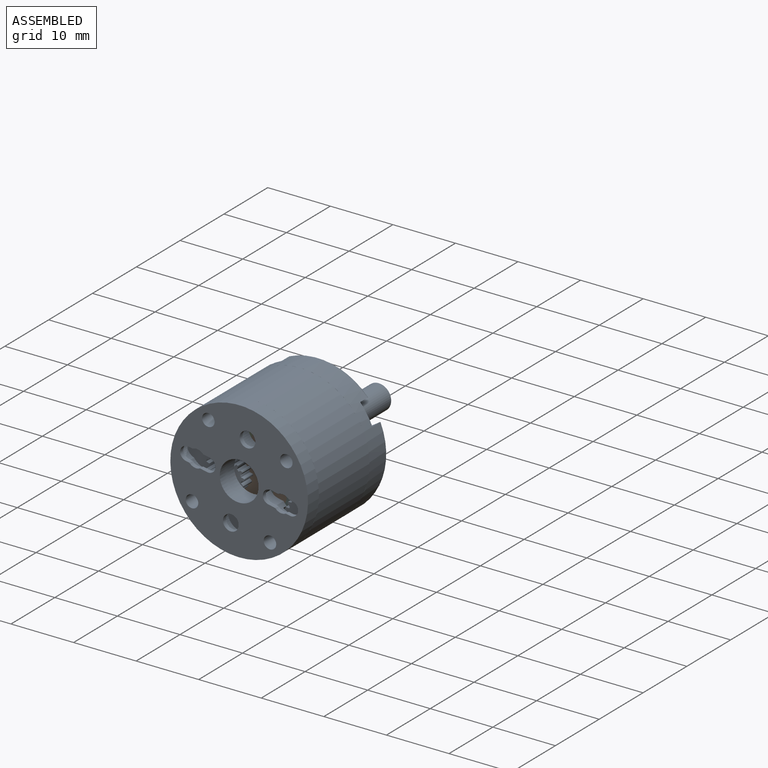
[diagram: assembled view]
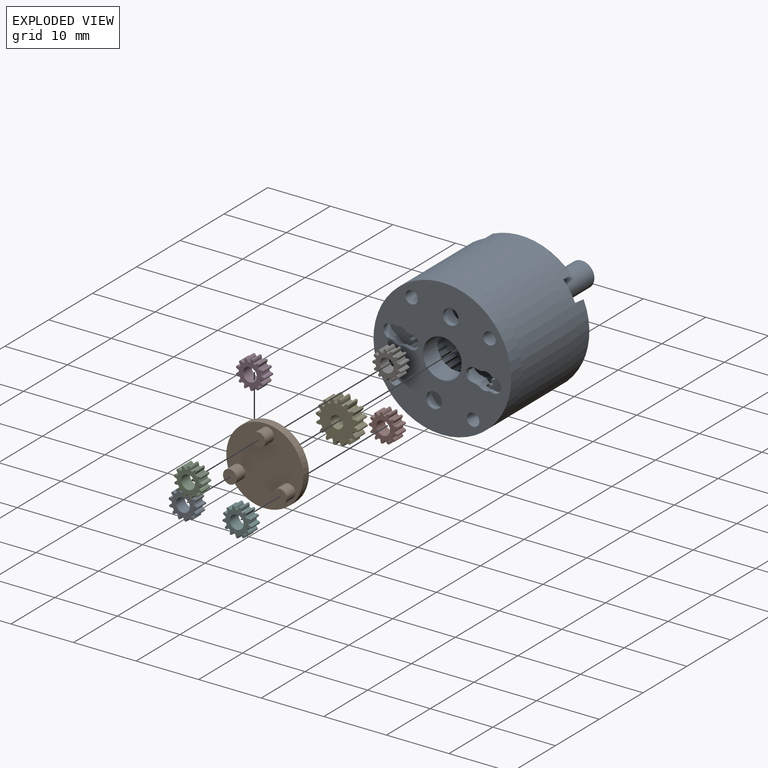
[diagram: exploded view]
GUIDED TOUR — MATED ASSEMBLY WITH SUBASSEMBLIES (Onshape document 57b5218062b9e988025ecf4e, AutoMate assembly 57b5218062b9e988025ecf4e_8886c2490278dff94fc5679e_6abe86f30e36404e3b47016e_default)

This assembly has 12 component occurrences arranged in 9 top-level units: 8 individual components plus 1 subassembly (S0). The tour has two levels: first the top level, where each subassembly is treated as one rigid unit; then each subassembly is toured internally in its own section (nesting deeper than one subassembly level is flattened into its subassembly's section).

Components are labeled P0..P11 across the whole record; subassembly units are labeled S0..S0. A mate is a constraint between two units; its type names the relative motion it leaves free:
  CYLINDRICAL — leaves both rotation about and translation along the listed axis free,
  FASTENED — locks the two components together rigidly (no relative motion),
  PLANAR — leaves sliding in the plane through the listed point (normal = the listed direction) and rotation about that normal free,
  REVOLUTE — leaves rotation about the listed axis free (a hinge).
Axis/direction vectors are unit vectors and 'through' points are millimeter coordinates, both in the assembly's world frame.

TOP-LEVEL MATES (between units; each subassembly's internal mates are listed in its own section)
  1. REVOLUTE "Revolute 1": P6 <-> S0, axis (0.000, 1.000, 0.000) through (-0.09, 2.40, -3.83) mm
  2. REVOLUTE "Revolute 3": P10 <-> S0, axis (0.000, 1.000, 0.000) through (6.83, 2.40, -4.16) mm
  3. CYLINDRICAL "Cylindrical 1": P2 <-> S0, axis (0.000, 1.000, 0.000) through (3.46, -0.65, -2.00) mm
  4. REVOLUTE "Revolute 6": P3 <-> P2, axis (0.000, 1.000, 0.000) through (3.86, -1.30, 2.60) mm
  5. REVOLUTE "Revolute 2": P9 <-> S0, axis (0.000, 1.000, 0.000) through (3.65, 2.40, 2.00) mm
  6. PLANAR "Planar 1": S0 <-> P2, direction (0.000, -1.000, 0.000) through (3.65, 0.40, 2.00) mm
  7. REVOLUTE "Revolute 5": P8 <-> P2, axis (0.000, 1.000, 0.000) through (7.25, -1.30, -4.64) mm
  8. FASTENED "Fastened 1": P7 <-> P2, direction (0.000, -1.000, 0.000) through (3.46, 0.00, -2.00) mm
  9. REVOLUTE "Revolute 7": P11 <-> P2, axis (0.000, 1.000, 0.000) through (-0.72, -1.30, -3.96) mm

TOP-LEVEL ASSEMBLY ORDER
  1. P2 — the base component [order heuristic]
  2. P7 [order verified]
  3. P3 — core [order heuristic]
  4. P8 — core [order heuristic]
  5. P11 — core [order heuristic]
  6. S0 — core [order heuristic]
  7. P10 [order verified]
  8. P9 [order verified]
  9. P6 [order verified]
(P10 verified with a relaxed clearance tolerance: the source model stores slight part interference there.)
Order-tag legend:
  [order verified] — this step's position reverses a verified removal order: the component was checked to insert without passing through the ones already placed.
  [order heuristic] — the first 5 components form the assembly's core: parts whose collision-free extraction could not be verified, listed in mate-graph order.

Of the 12 component occurrences, 3 carry the full construction recipe — the FeatureScript program that regenerates the part's solid from scratch; the rest are supplied as boundary geometry only. Each toured unit is shown spotlighted twice — assembled, then exploded with a leader line back to its socket (green = recipe-attached component, orange = geometry-only, blue = subassembly unit; the rest desaturated gray).
NOTE — this tour is split across 2 documents so each fits a 32k-token context. This is document 1: the component sections continue in the remaining 1 document, each repeating the header above.
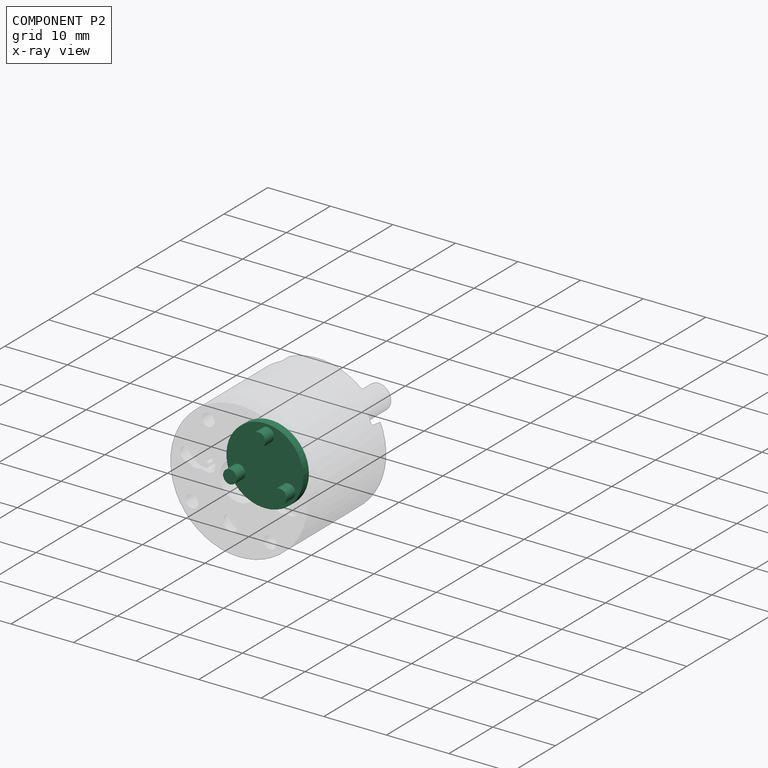
[diagram: component P2 — x-ray view]
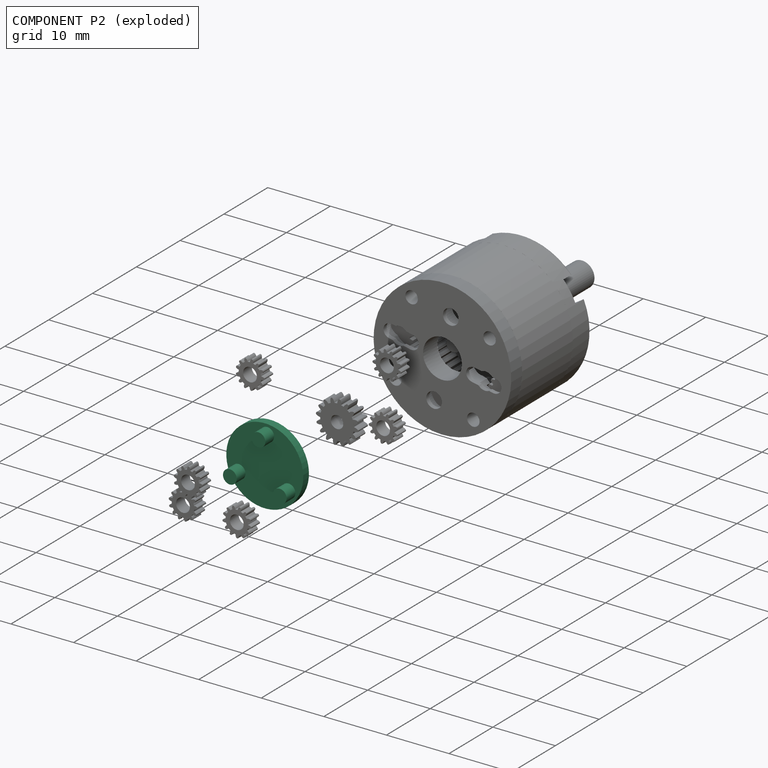
[diagram: component P2 — exploded]
COMPONENT P2 — recipe-attached (CADFS 00161363, mesh-verified: the recipe's output STEP matches this component's geometry to below the mesh-comparison resolution (tessellation chordal tolerance ~0.0273 mm)).
Held by: CYLINDRICAL mate "Cylindrical 1" to P0; REVOLUTE mate "Revolute 6" to P3; PLANAR mate "Planar 1" to P0; REVOLUTE mate "Revolute 5" to P8; FASTENED mate "Fastened 1" to P7; REVOLUTE mate "Revolute 7" to P11.
Construction recipe (FeatureScript — the CAD program that rebuilds this solid; sketch coordinates are in the units given by the * unit suffixes, e.g. mm):

FeatureScript 1540;
import(path : "onshape/std/geometry.fs", version : "1540.0");
import(path : "onshape/std/common.fs", version : "1540.0");
const mm = millimeter;
const VERTEX = EntityType.VERTEX;
const EDGE = EntityType.EDGE;
const FACE = EntityType.FACE;
const BODY = EntityType.BODY;
function v(x, y){return vector(x, y);}
function OD(order){return orderDisambiguation(order);}
function OSD(set){return originalSetDisambiguation(set);}
function TD(topology){return topologyDisambiguation(topology);}
function TDD(query){return trueDependencyDisambiguation(query);}
function sQuery(a, b, c) {return sketchEntityQuery(a, b, c);}

annotation { "Feature Type Name" : "Feature", "Feature Type Description" : "" }
export const myFeature = defineFeature(function(context is Context, id is Id, definition is map)
    precondition{}
    {
        {
            var Q0;
            Q0=qCreatedBy(makeId("Front.planeOp"),FACE);
            var sketch = newSketch(context, id + "F0", { "sketchPlane" : qUnion([Q0])});
            skCircle(sketch, "E0", {"center": v(0, 0) * mm, "radius": 6.15 * mm});
            skSolve(sketch);
        }
        {
            var Q0;
            Q0=qSketchRegion(id+"F0",true);
            extrude(context, id + "F1", {"entities" : qUnion([Q0]), "depth" : 1.3 * mm});
        }
        {
            var Q0;
            Q0=makeQuery(id+"F1.opExtrude","CAP_FACE",FACE,{"disambiguationData":[OSD([sQuery(id+"F0.wireOp",EDGE,"E0")])],"isStart":false});
            var sketch = newSketch(context, id + "F2", { "sketchPlane" : qUnion([Q0])});
            skCircle(sketch, "E1", {"center": v(0, 0) * mm, "radius": 4.62 * mm, "construction": true});
            skLineSegment(sketch, "E2", {"start": v(0, 6.15) * mm, "end": v(0, -6.15) * mm, "construction": true});
            skLineSegment(sketch, "E3", {"start": v(-6.15, 0) * mm, "end": v(6.15, 0) * mm, "construction": true});
            skCircle(sketch, "E4", {"center": v(0, 4.62) * mm, "radius": 1.1 * mm});
            skCircle(sketch, "E5.1.0", {"center": v(-4, -2.3) * mm, "radius": 1.1 * mm});
            skCircle(sketch, "E5.2.0", {"center": v(4, -2.3) * mm, "radius": 1.1 * mm});
            skSolve(sketch);
        }
        {
            var Q0;
            Q0=qSketchRegion(id+"F2",true);
            extrude(context, id + "F3", {"entities" : qUnion([Q0]), "operationType" : NewBodyOperationType.ADD, "depth" : 2 * mm});
        }
        {
            var Q0;
            Q0=makeQuery(id+"F1.opExtrude","CAP_FACE",FACE,{"disambiguationData":[OSD([sQuery(id+"F0.wireOp",EDGE,"E0")])],"isStart":true});
            var Q1;
            Q1=makeQuery(id+"F1.opExtrude","CAP_FACE",FACE,{"disambiguationData":[OSD([sQuery(id+"F0.wireOp",EDGE,"E0")])],"isStart":true});
            var sketch = newSketch(context, id + "F4", { "sketchPlane" : qUnion([Q0, Q1])});
            skCircle(sketch, "E6", {"center": v(0, 0) * mm, "radius": 1.1 * mm});
            skSolve(sketch);
        }
        {
            var Q0;
            Q0=qSketchRegion(id+"F4",true);
            extrude(context, id + "F5", {"entities" : qUnion([Q0]), "operationType" : NewBodyOperationType.ADD, "depth" : 2 * mm});
        }
    });
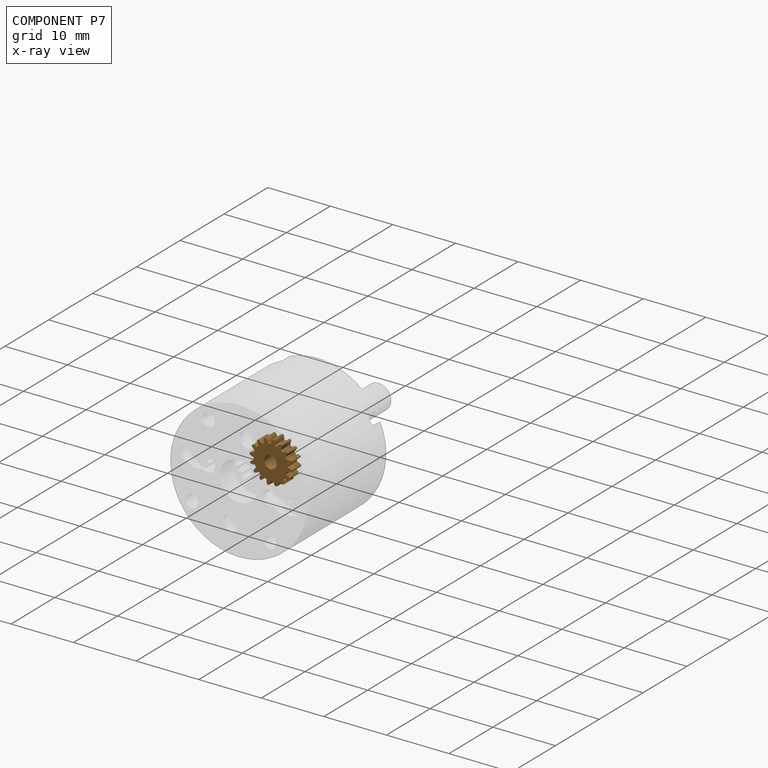
[diagram: component P7 — x-ray view]
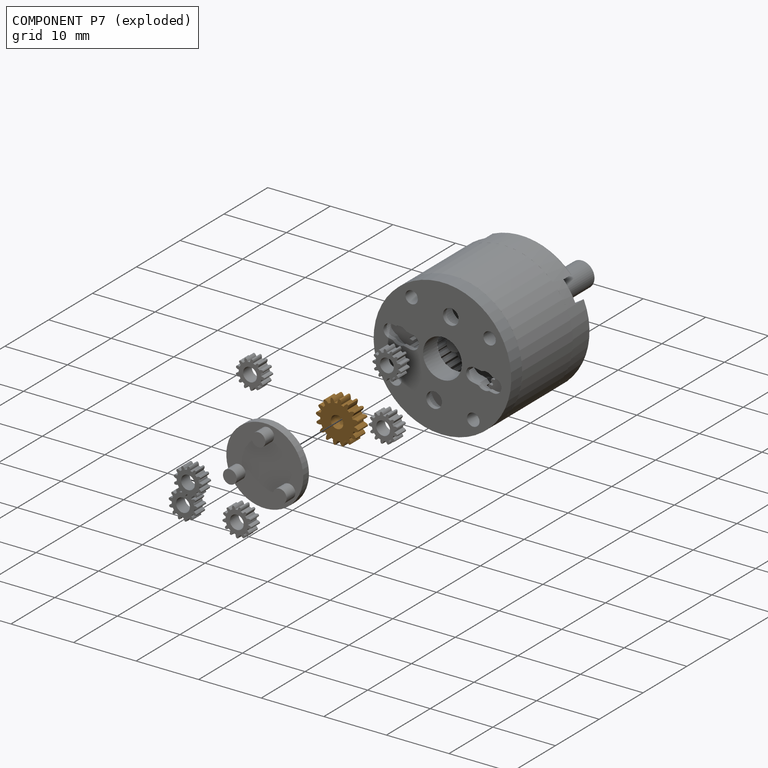
[diagram: component P7 — exploded]
COMPONENT P7 — geometry summary (no construction recipe available for this part):
  bounding box: 6.8 x 6.8 x 2.2 mm
  B-rep topology: 1 solid, 131 faces, 776 edges
  volume: 56 mm^3 (56% of its bounding box)
  symmetry: 4-fold rotationally symmetric about the y axis; mirror-symmetric across its y mid-plane
Held by: FASTENED mate "Fastened 1" to P2.
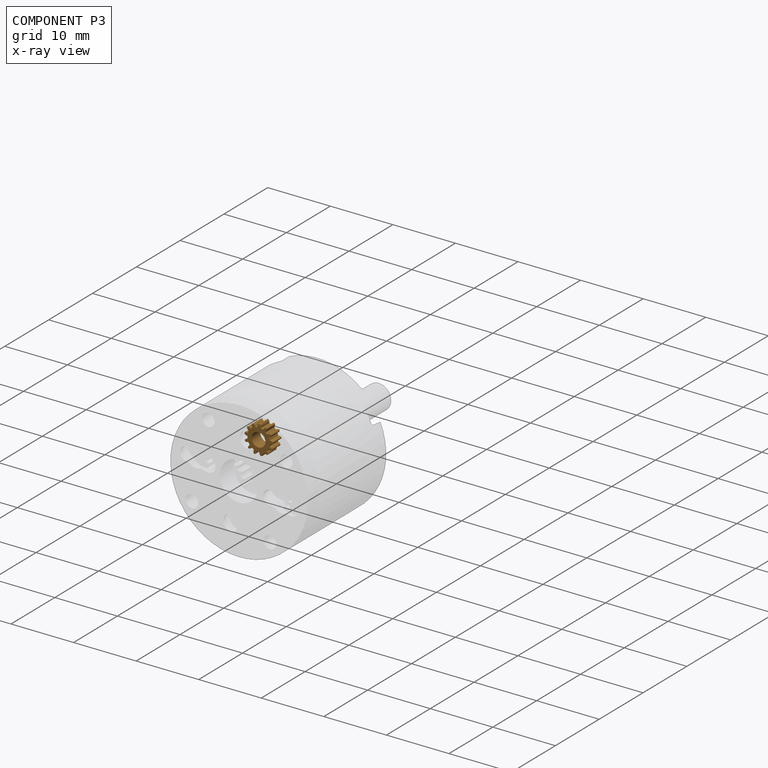
[diagram: component P3 — x-ray view]
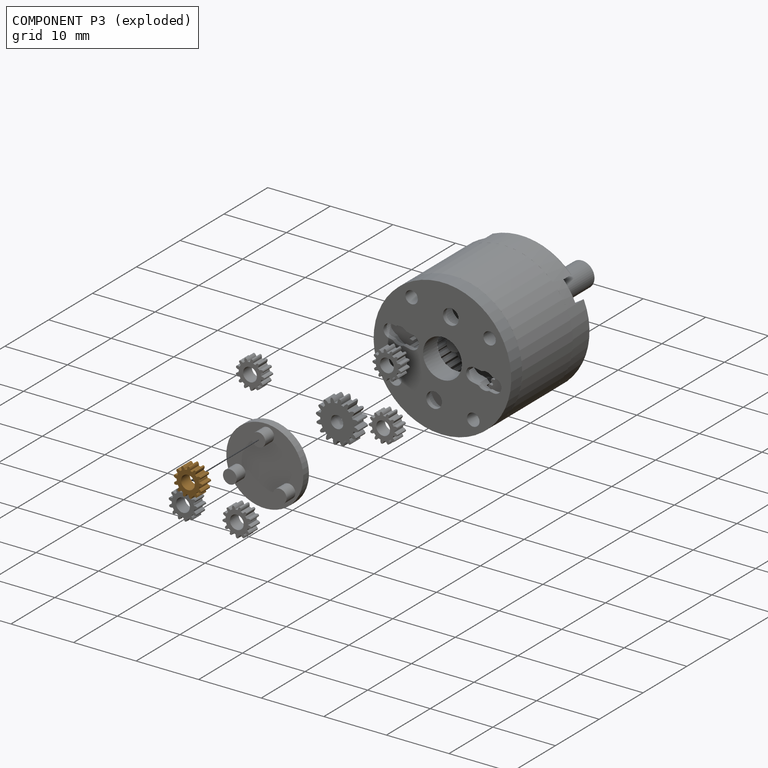
[diagram: component P3 — exploded]
COMPONENT P3 — geometry summary (no construction recipe available for this part):
  bounding box: 4.6 x 4.6 x 2.0 mm
  B-rep topology: 1 solid, 107 faces, 632 edges
  volume: 18 mm^3 (44% of its bounding box)
  symmetry: mirror-symmetric across its y mid-plane
Held by: REVOLUTE mate "Revolute 6" to P2.
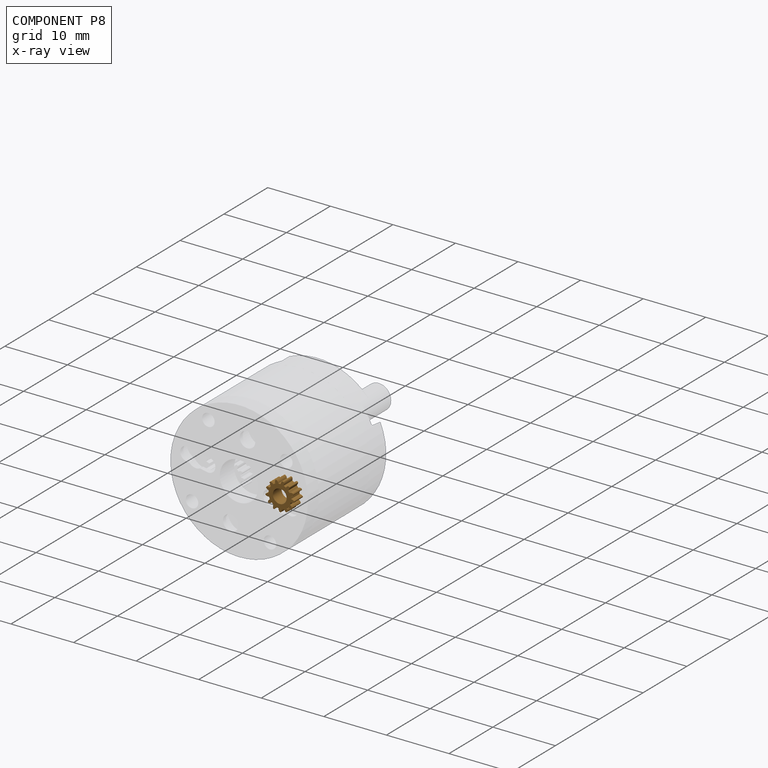
[diagram: component P8 — x-ray view]
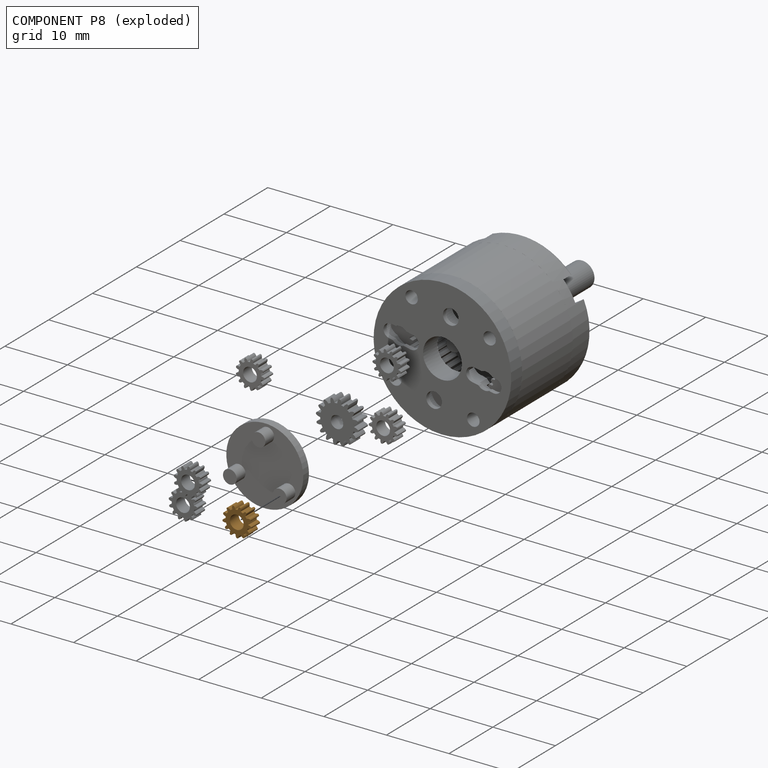
[diagram: component P8 — exploded]
COMPONENT P8 — geometry summary (no construction recipe available for this part):
  bounding box: 4.6 x 4.6 x 2.0 mm
  B-rep topology: 1 solid, 107 faces, 632 edges
  volume: 18 mm^3 (44% of its bounding box)
  symmetry: mirror-symmetric across its y mid-plane
Held by: REVOLUTE mate "Revolute 5" to P2.
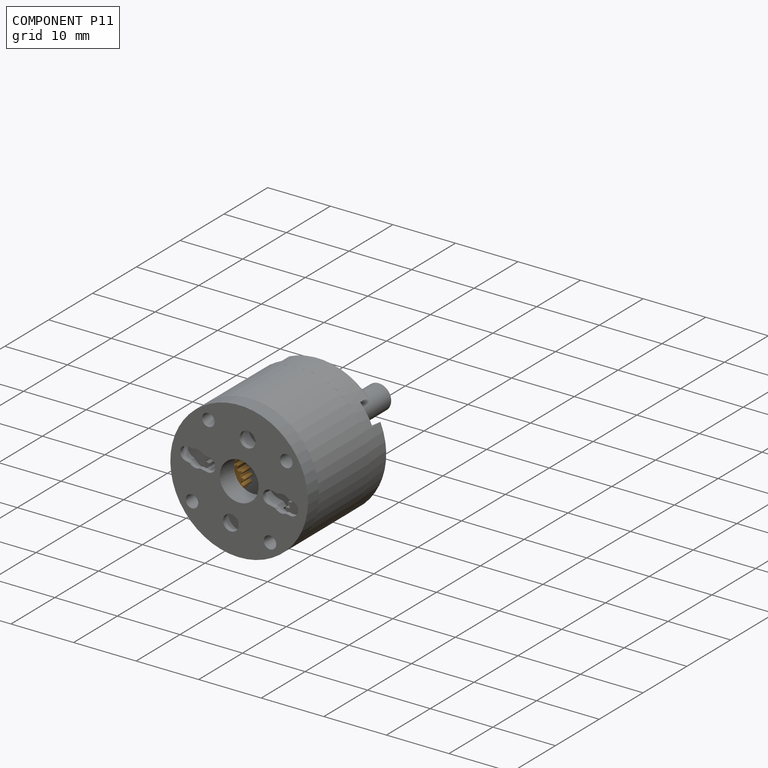
[diagram: component P11 — assembled]
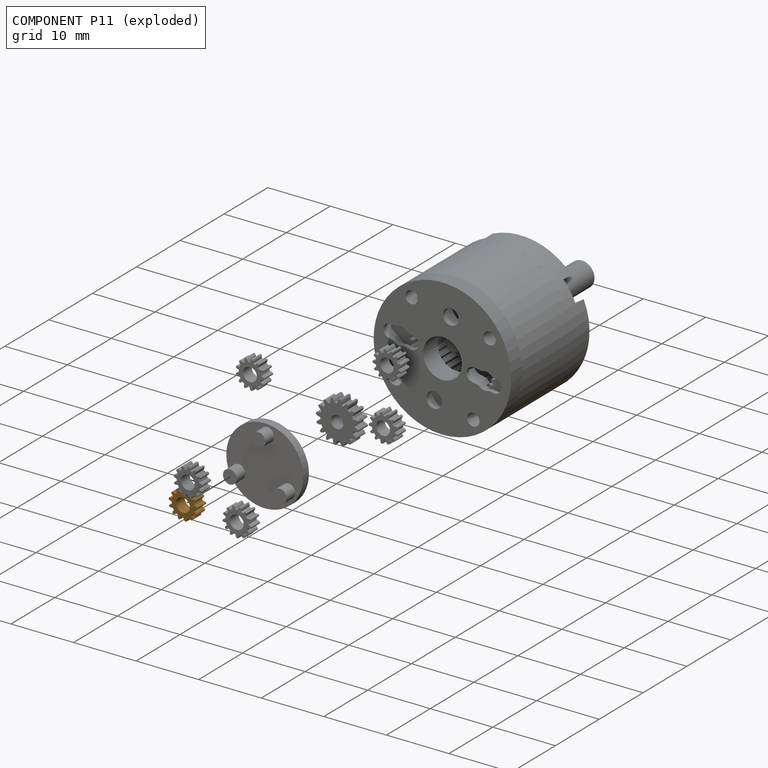
[diagram: component P11 — exploded]
COMPONENT P11 — geometry summary (no construction recipe available for this part):
  bounding box: 4.6 x 4.6 x 2.0 mm
  B-rep topology: 1 solid, 107 faces, 632 edges
  volume: 18 mm^3 (44% of its bounding box)
  symmetry: mirror-symmetric across its y mid-plane
Held by: REVOLUTE mate "Revolute 7" to P2.
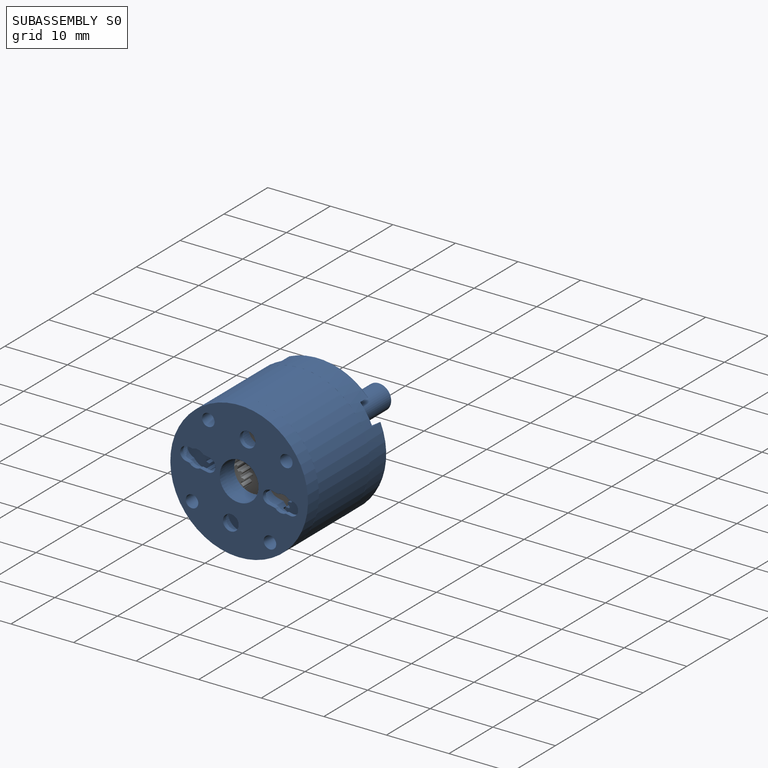
[diagram: subassembly S0 — assembled]
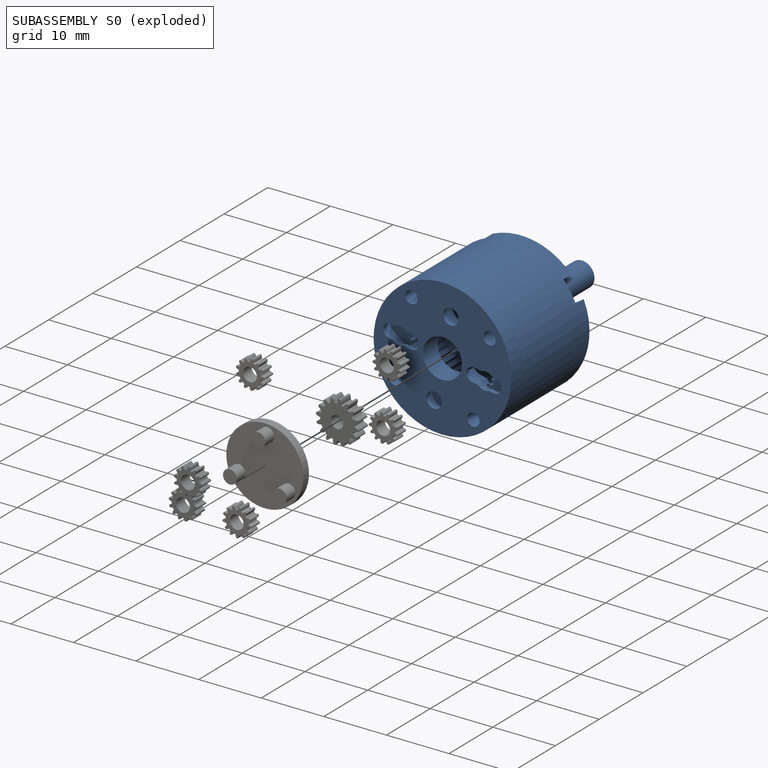
[diagram: subassembly S0 — exploded]
SUBASSEMBLY S0 — 4 components (P0, P1, P4, P5), of which 2 recipe-attached; toured below.
Held by: REVOLUTE mate "Revolute 1" to P6; REVOLUTE mate "Revolute 3" to P10; CYLINDRICAL mate "Cylindrical 1" to P2; REVOLUTE mate "Revolute 2" to P9; PLANAR mate "Planar 1" to P2.
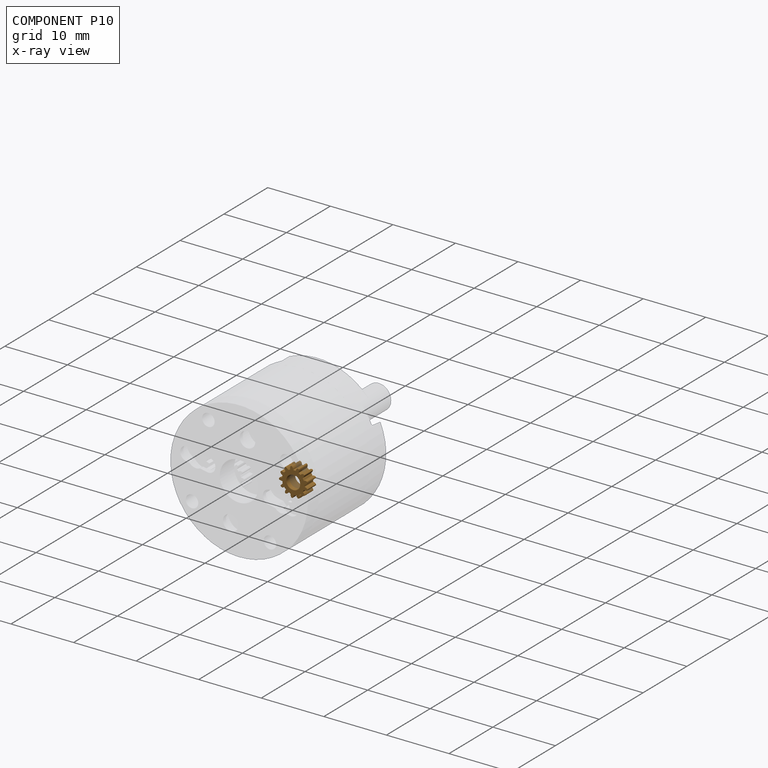
[diagram: component P10 — x-ray view]
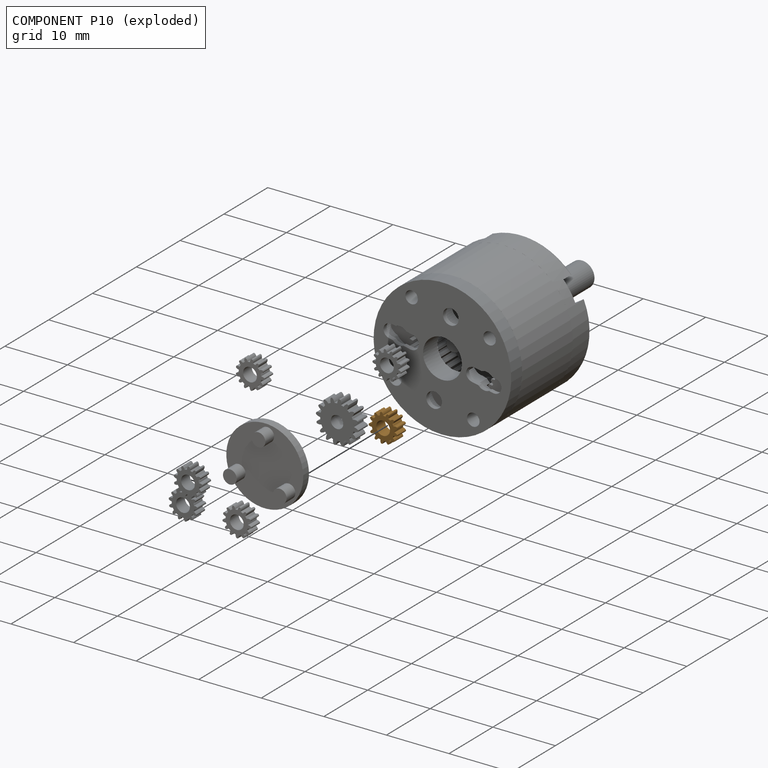
[diagram: component P10 — exploded]
COMPONENT P10 — geometry summary (no construction recipe available for this part):
  bounding box: 4.6 x 4.6 x 2.0 mm
  B-rep topology: 1 solid, 107 faces, 632 edges
  volume: 18 mm^3 (44% of its bounding box)
  symmetry: mirror-symmetric across its y mid-plane
Held by: REVOLUTE mate "Revolute 3" to P0.
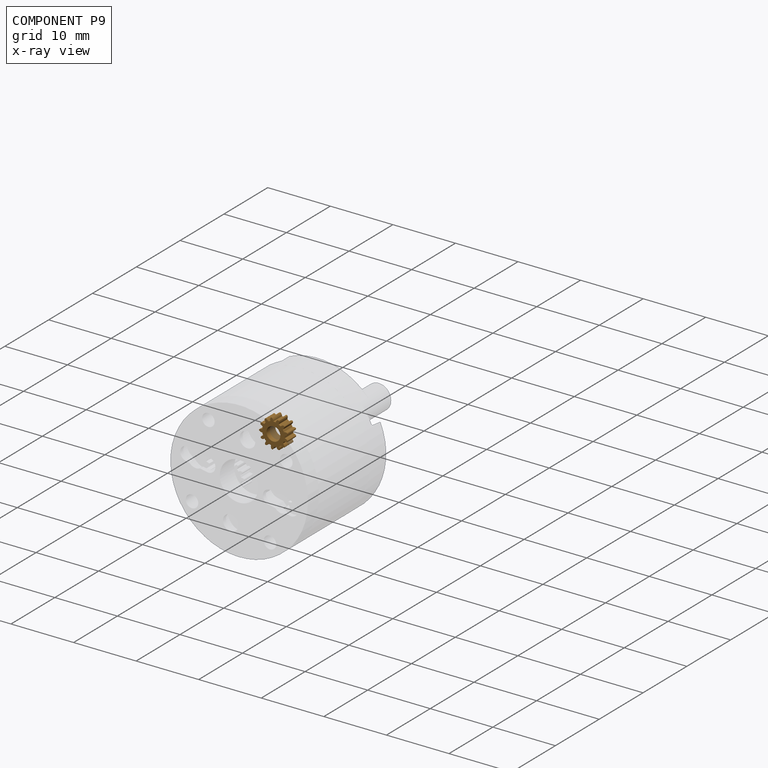
[diagram: component P9 — x-ray view]
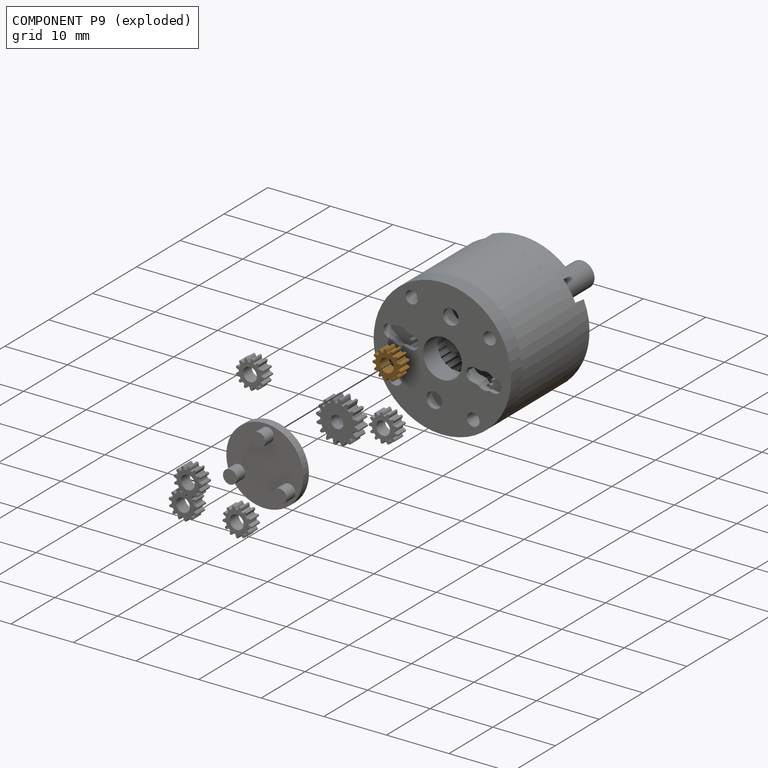
[diagram: component P9 — exploded]
COMPONENT P9 — geometry summary (no construction recipe available for this part):
  bounding box: 4.6 x 4.6 x 2.0 mm
  B-rep topology: 1 solid, 107 faces, 632 edges
  volume: 18 mm^3 (44% of its bounding box)
  symmetry: mirror-symmetric across its y mid-plane
Held by: REVOLUTE mate "Revolute 2" to P0.
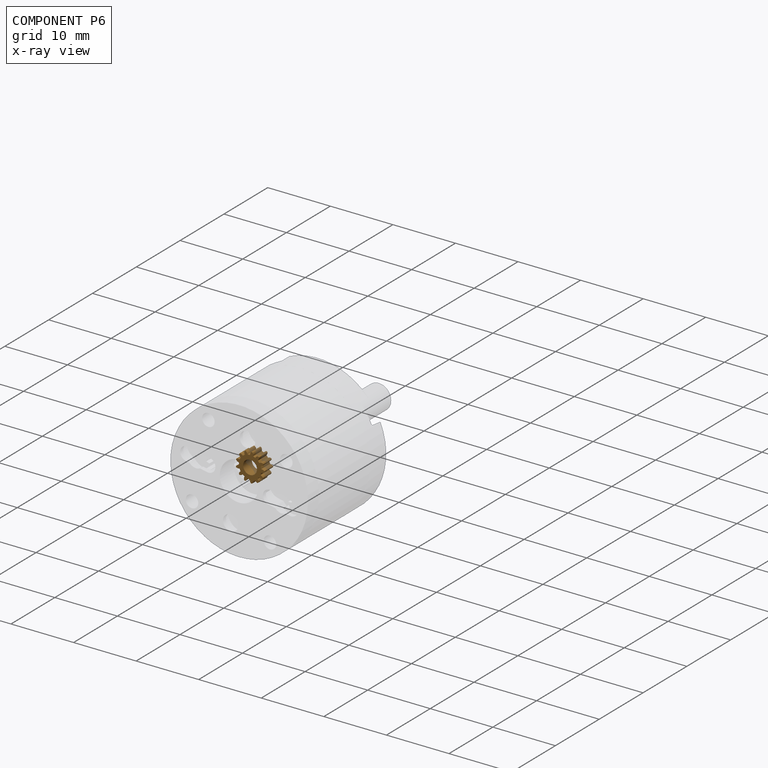
[diagram: component P6 — x-ray view]
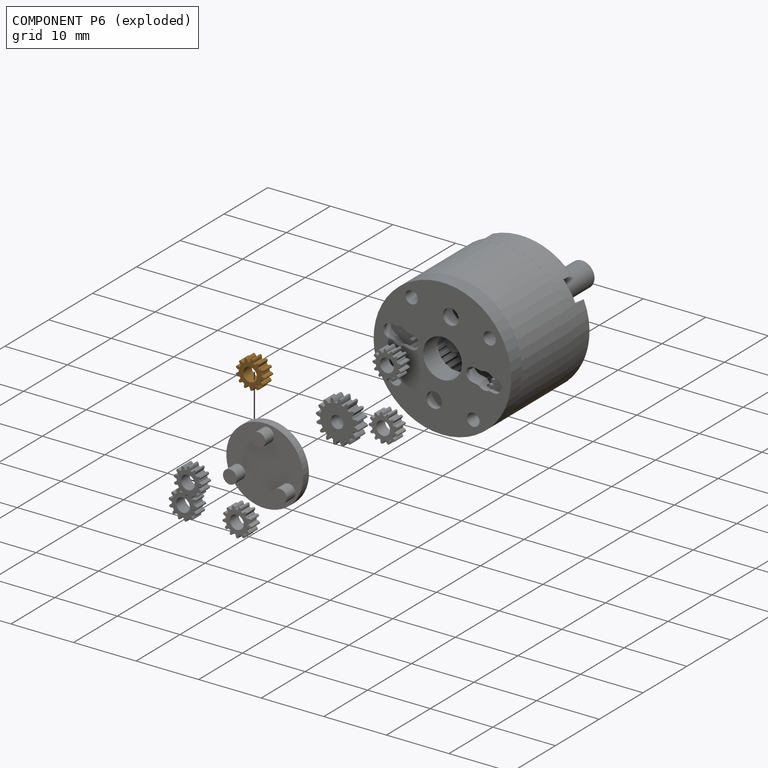
[diagram: component P6 — exploded]
COMPONENT P6 — geometry summary (no construction recipe available for this part):
  bounding box: 4.6 x 4.6 x 2.0 mm
  B-rep topology: 1 solid, 107 faces, 632 edges
  volume: 18 mm^3 (44% of its bounding box)
  symmetry: mirror-symmetric across its y mid-plane
Held by: REVOLUTE mate "Revolute 1" to P0.
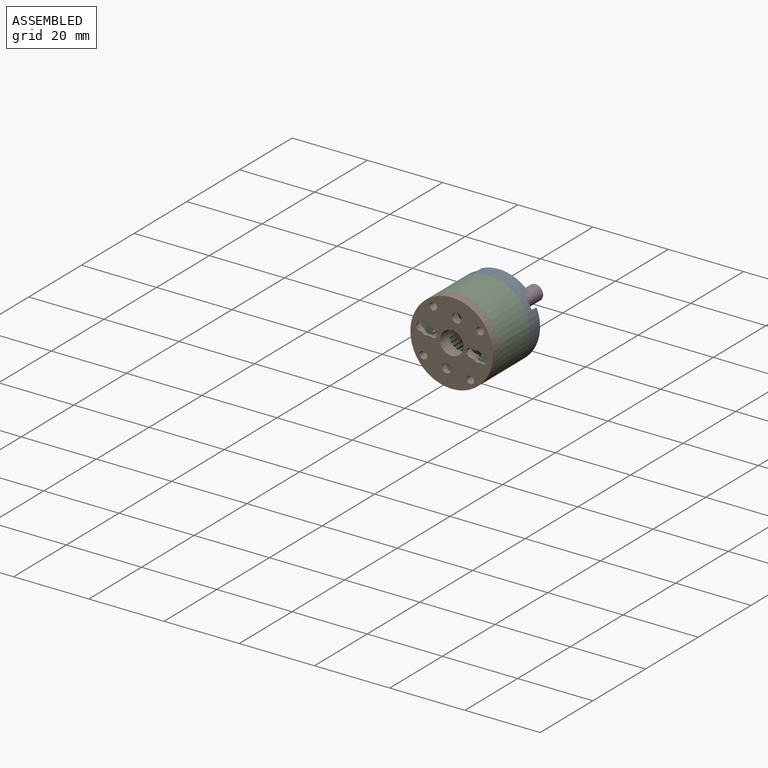
[diagram: subassembly S0 — assembled view]
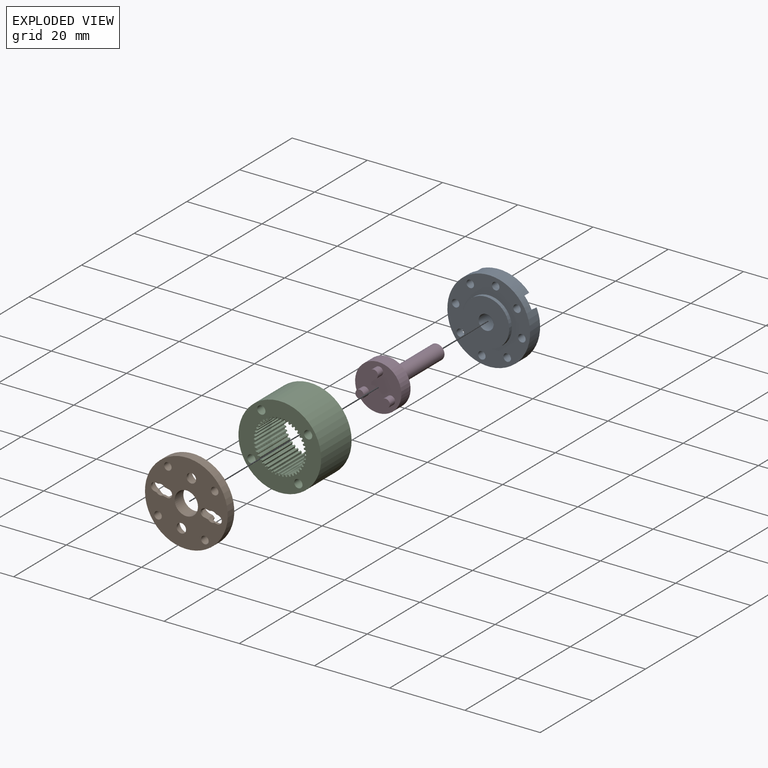
[diagram: subassembly S0 — exploded view]
SUBASSEMBLY S0 TOUR — 4 components, shown here in isolation at its own camera.

INTERNAL MATES
  1. CYLINDRICAL "Cylindrical 2": P4 <-> P1, axis (0.000, 1.000, 0.000) through (11.00, -4.65, 2.92) mm
  2. REVOLUTE "Revolute 1": P0 <-> P5, axis (0.000, -1.000, 0.000) through (3.46, 5.90, -2.00) mm
  3. REVOLUTE "Revolute 3": P4 <-> P1, axis (0.000, -1.000, 0.000) through (3.46, -4.65, -2.00) mm
  4. REVOLUTE "Revolute 2": P0 <-> P4, axis (0.000, -1.000, 0.000) through (3.46, 6.90, -2.00) mm
  5. CYLINDRICAL "Cylindrical 1": P0 <-> P4, axis (0.000, 1.000, 0.000) through (11.00, 7.90, 2.92) mm
  6. REVOLUTE "Revolute 2": P0 <-> P4, axis (0.000, -1.000, 0.000) through (3.46, 6.90, -2.00) mm
  7. REVOLUTE "Revolute 1": P0 <-> P5, axis (0.000, -1.000, 0.000) through (3.46, 5.90, -2.00) mm
  8. REVOLUTE "Revolute 3": P4 <-> P1, axis (0.000, -1.000, 0.000) through (3.46, -4.65, -2.00) mm
  9. CYLINDRICAL "Cylindrical 2": P4 <-> P1, axis (0.000, 1.000, 0.000) through (11.00, -4.65, 2.92) mm
  10. CYLINDRICAL "Cylindrical 1": P0 <-> P4, axis (0.000, 1.000, 0.000) through (11.00, 7.90, 2.92) mm

ASSEMBLY ORDER (within the subassembly)
  1. P0 — the base component [order heuristic]
  2. P5 — core [order heuristic]
  3. P4 [order verified]
  4. P1 [order verified]
(P1 verified with a relaxed clearance tolerance: the source model stores slight part interference there.)
Order-tag legend:
  [order verified] — this step's position reverses a verified removal order: the component was checked to insert without passing through the ones already placed.
  [order heuristic] — the first 2 components form the assembly's core: parts whose collision-free extraction could not be verified, listed in mate-graph order.
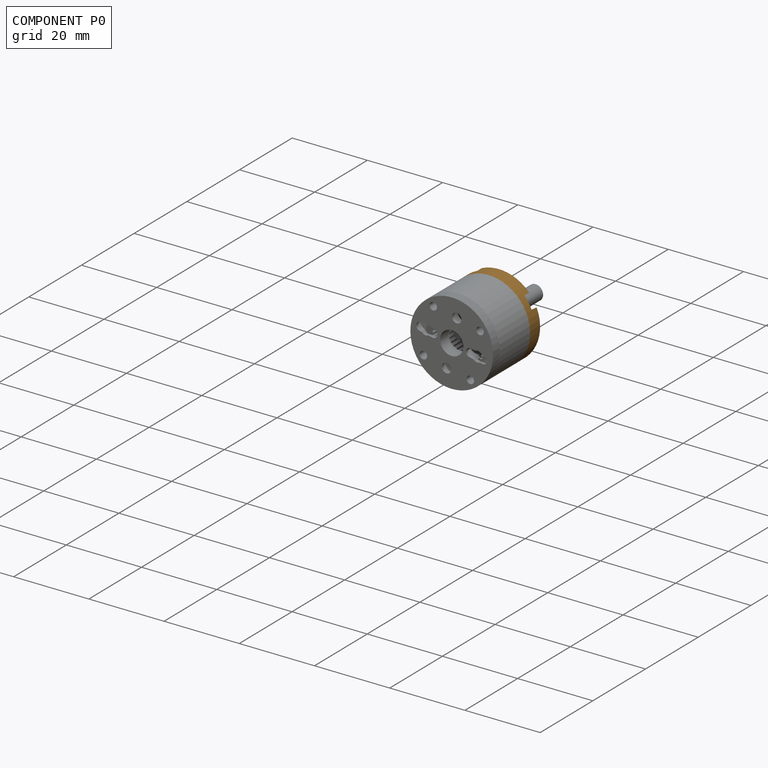
[diagram: component P0 — assembled]
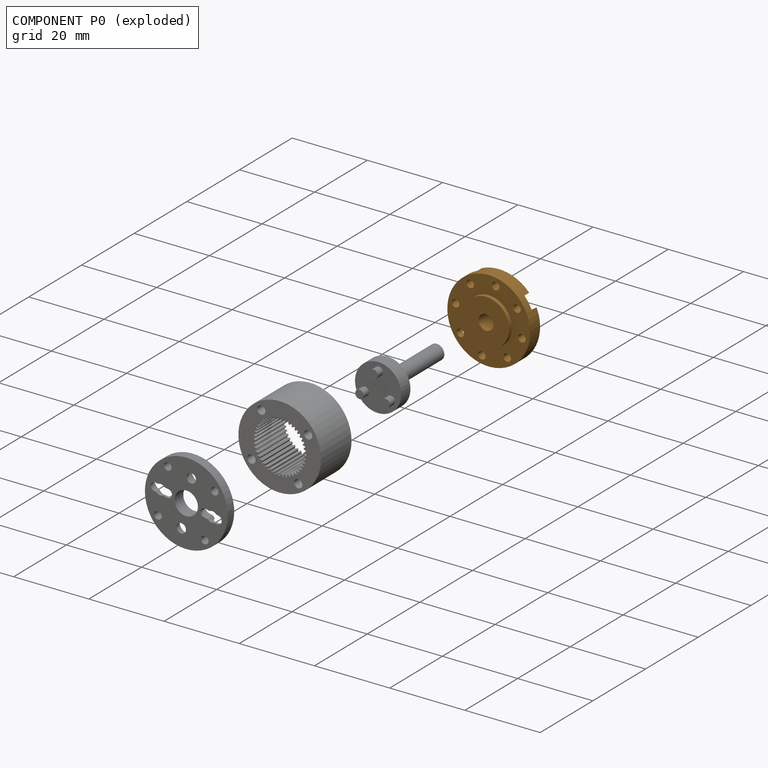
[diagram: component P0 — exploded]
COMPONENT P0 — geometry summary (no construction recipe available for this part):
  bounding box: 23.5 x 23.5 x 7.0 mm
  B-rep topology: 1 solid, 43 faces, 234 edges
  volume: 1666 mm^3 (43% of its bounding box)
  symmetry: 2-fold rotationally symmetric about the y axis; mirror-symmetric across its x mid-plane, z mid-plane
Held by: REVOLUTE mate "Revolute 1" to P5; REVOLUTE mate "Revolute 2" to P4; CYLINDRICAL mate "Cylindrical 1" to P4; REVOLUTE mate "Revolute 2" to P4; REVOLUTE mate "Revolute 1" to P5; CYLINDRICAL mate "Cylindrical 1" to P4.
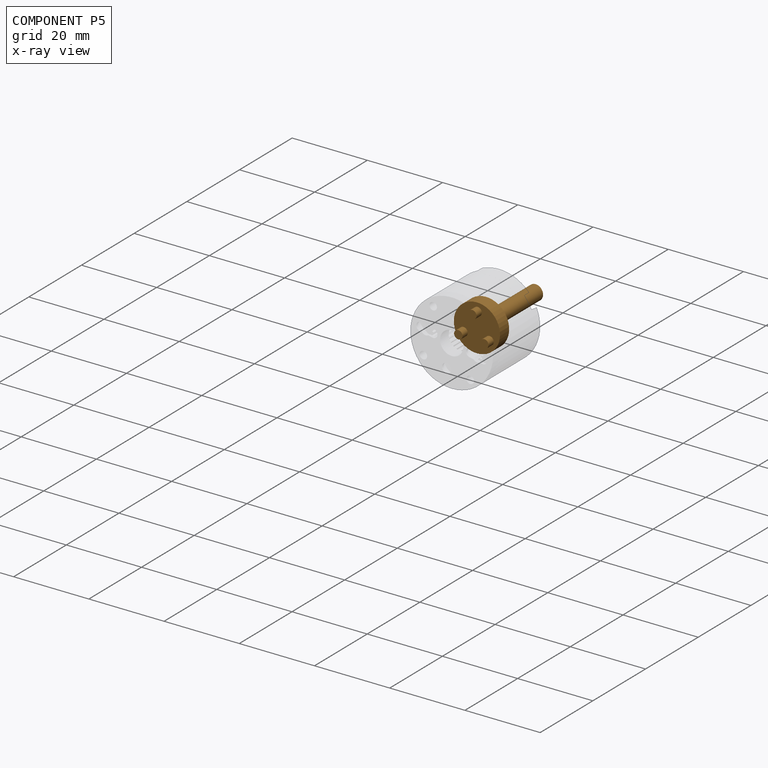
[diagram: component P5 — x-ray view]
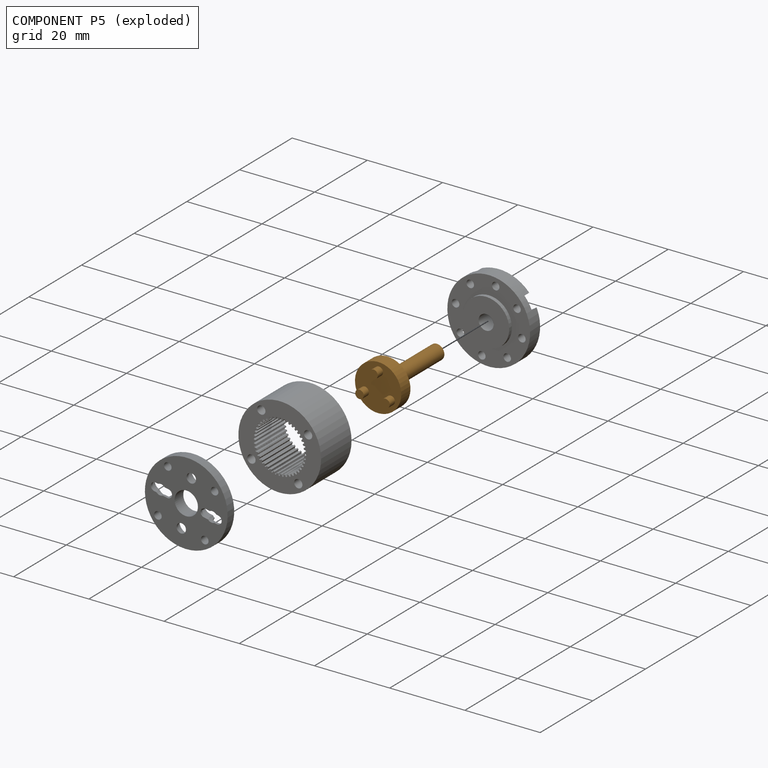
[diagram: component P5 — exploded]
COMPONENT P5 — geometry summary (no construction recipe available for this part):
  bounding box: 24.4 x 12.3 x 12.3 mm
  B-rep topology: 1 solid, 17 faces, 66 edges
  volume: 670 mm^3 (18% of its bounding box)
  symmetry: mirror-symmetric across its x mid-plane
Held by: REVOLUTE mate "Revolute 1" to P0; REVOLUTE mate "Revolute 1" to P0.
